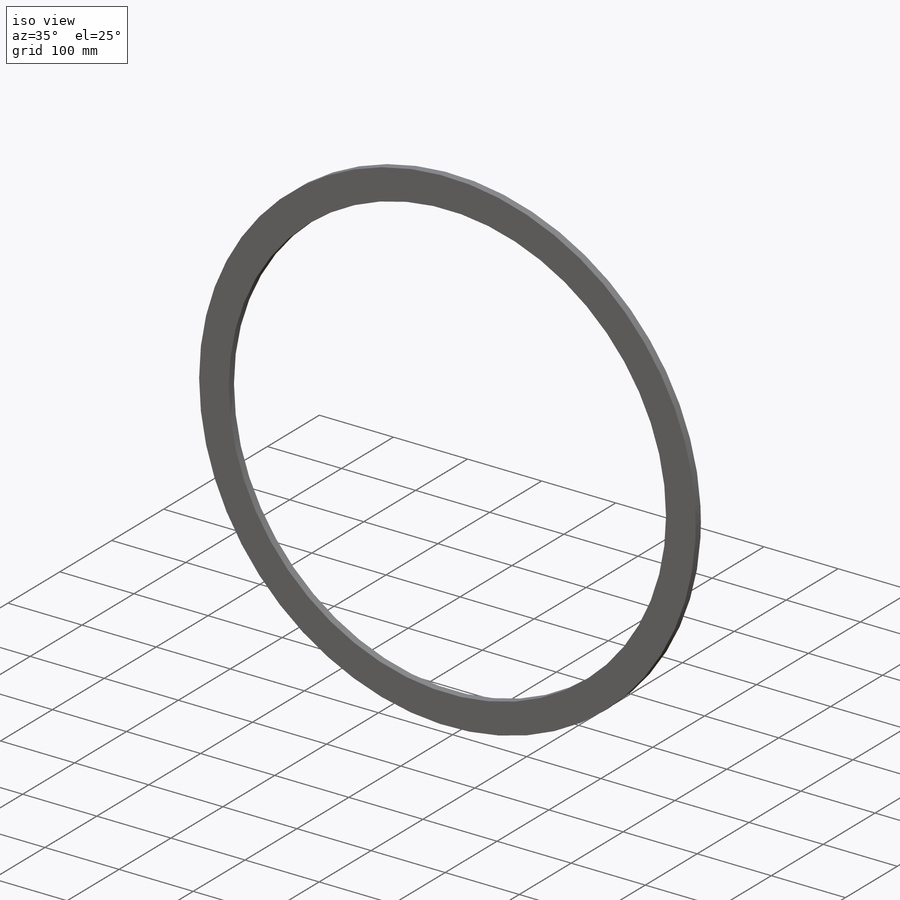
[diagram: iso view]
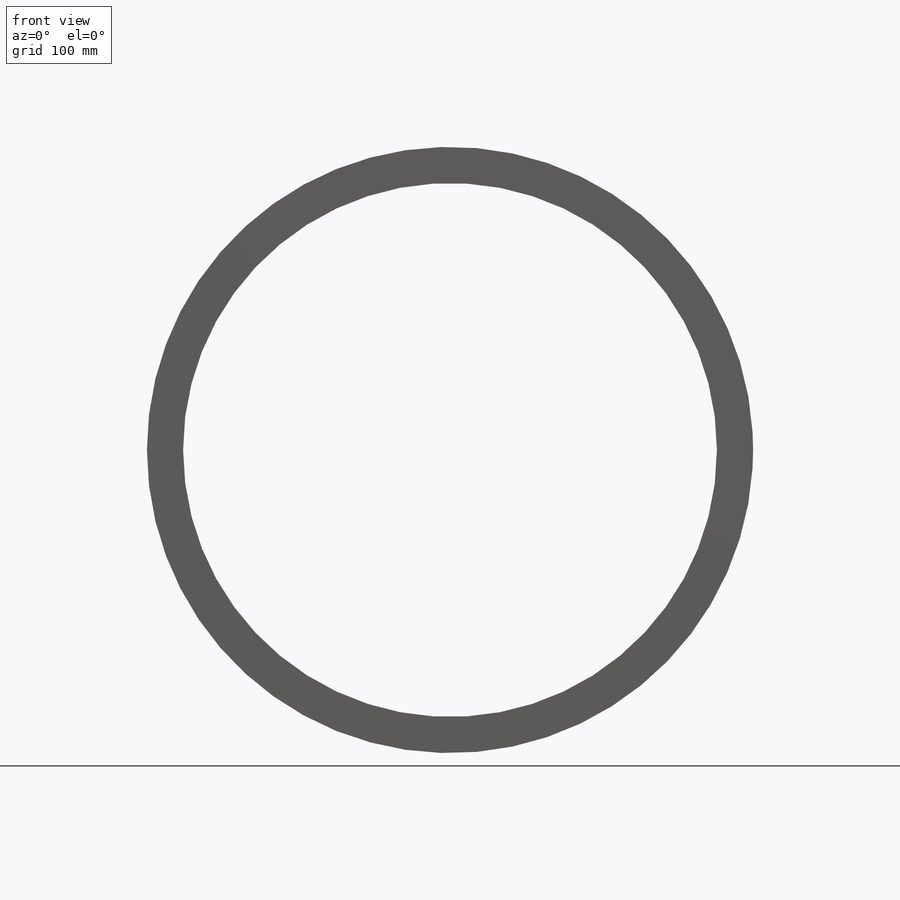
[diagram: front view]
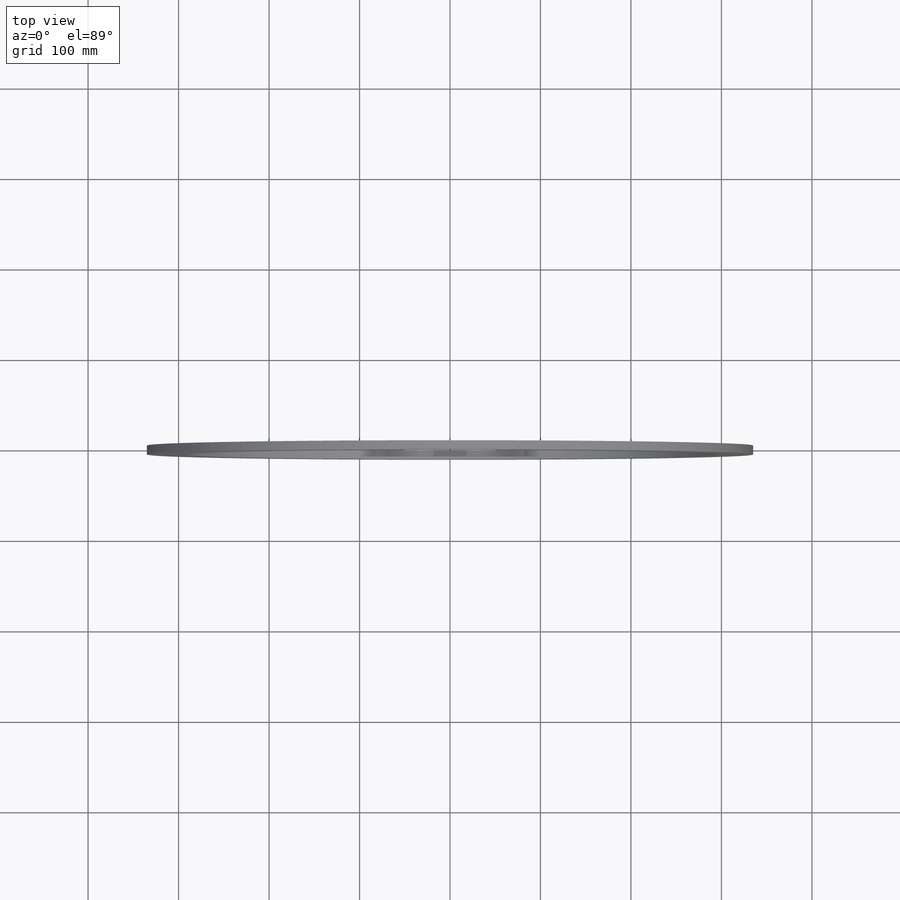
[diagram: top view]
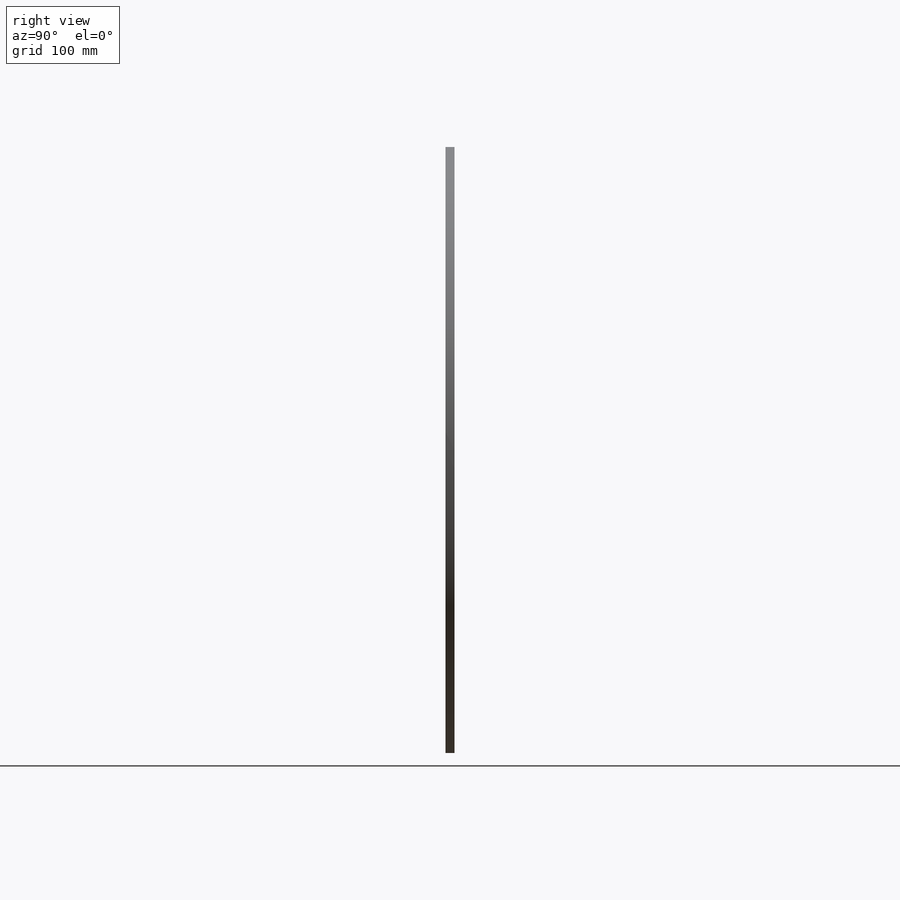
[diagram: right view]
SOLIDWORKS PART (.sldprt)
format: sldprt  version: not decoded by parser v0  size: 481,792 bytes
history: native  units: mm
features: sketch x6, extrude x4, cut_extrude x2, material x1 (+11 scaffold rows collapsed)
feature tree (24):
  scaffold x11  (default folders/planes/origin — collapsed)
  material  "Material <not specified>"
  sketch  "Sketch1"  dims[D1=590.0mm D2=670.0mm]
  extrude  "Boss-Extrude1"  Depth=10mm
  sketch  "Sketch2"  dims[c1.D3=10.0mm c1.D1=~20.770467mm c2.D1=5.0deg c2.D2=355.5mm c3.D2=5.0deg c4.D2=~327.197991mm c5.D2=5.0deg]
  extrude  "Boss-Extrude2"  Depth=10mm
  sketch  "Sketch3"  dims[c1.D3=10.0mm c1.D1=~355.770467mm c2.D1=5.0deg c2.D2=~355.770467mm c3.D2=5.0deg]
  extrude  "Boss-Extrude3"  Depth=10mm
  sketch  "Sketch4"  dims[D1=30.0mm]
  cut_extrude  "Cut-Extrude1"  Depth=10mm
  sketch  "Sketch5"  dims[D1=30.0mm]
  cut_extrude  "Cut-Extrude2"  Depth=10mm
  sketch  "Sketch6"  dims[c1.D3=10.0mm c1.D5=10.0mm c1.D1=355.5mm c2.D1=5.0deg c2.D2=355.5mm c3.D2=5.0deg c3.D4=30.0mm]
  extrude  "Boss-Extrude4"  Depth=10mm
decode coverage: 12 of 12 modeling features carry decoded parameters
note: ~ marks probable driven/reference dimensions
note: suppression state not decoded; provenance and decode notes live in map.json
